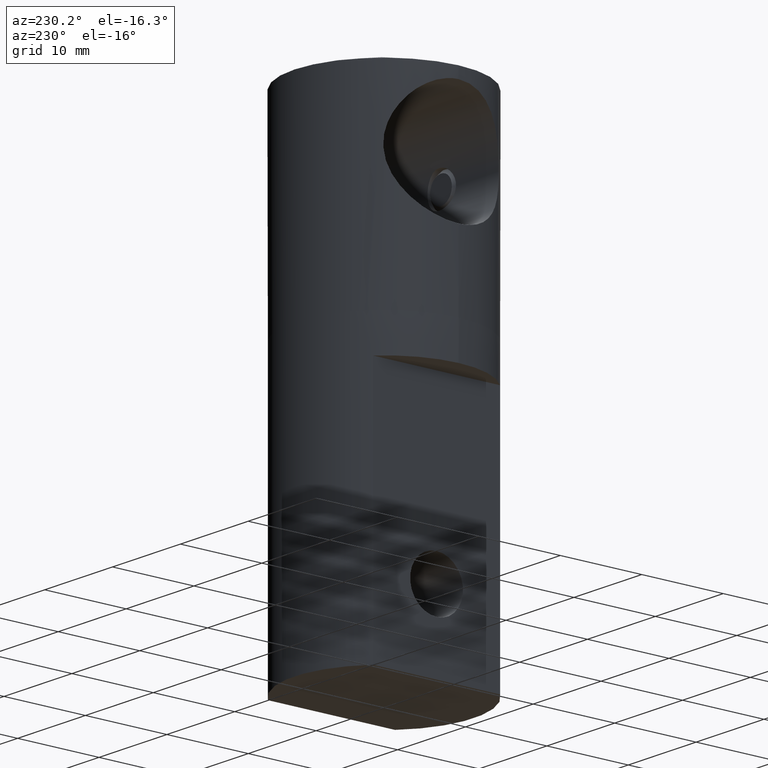
[diagram: clean part render]
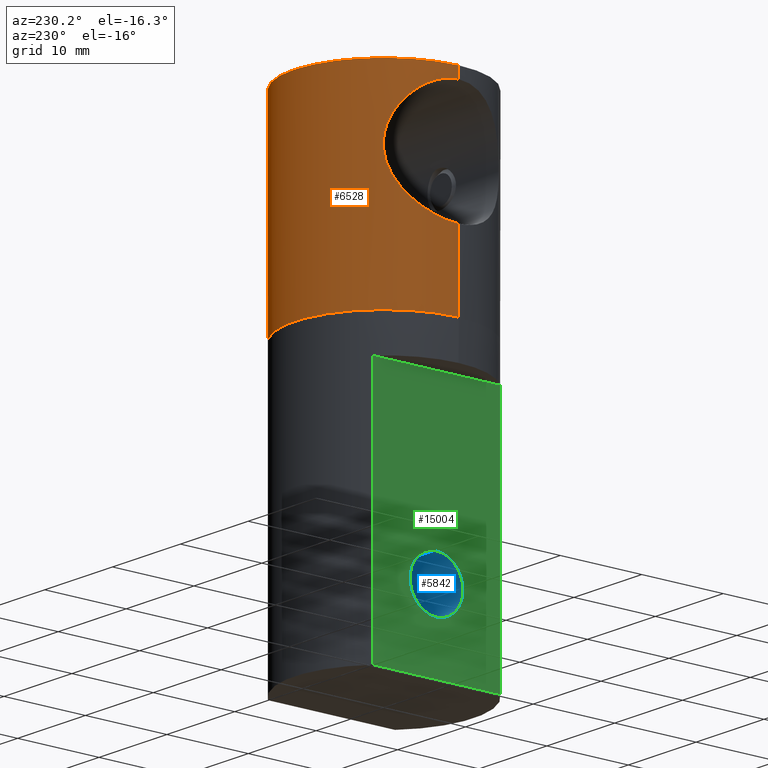
[diagram: same view with three faces highlighted in distinct colors, each labeled with its STEP entity id]
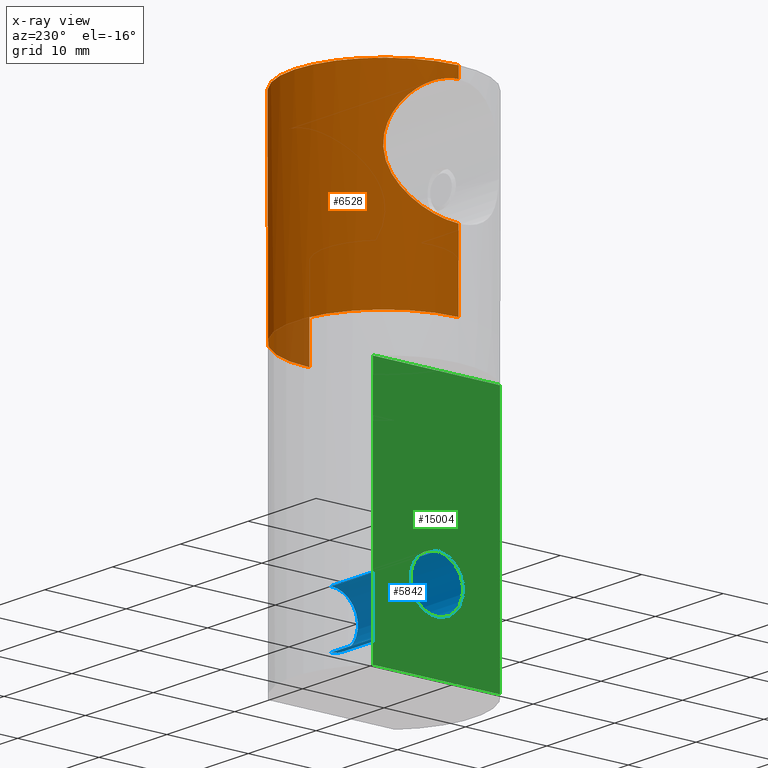
[diagram: x-ray of the same camera — body ghosted, the three highlighted faces saturated]
A machine part, auxiliary view with three faces highlighted in distinct colors.
The next image is the same camera in x-ray (body ghosted, the three faces saturated) — at least one of them is partly hidden behind the body in this view.
Their STEP definitions:

[orange] entity #6528 — the highlighted cylindrical surface (partial cylindrical patch) has radius 11 mm, axis along (0, 0, 1).
#43 = CARTESIAN_POINT ( 'NONE',  ( -9.945067796824554662, 4.714123835347594493, -2.378162400668189846 ) ) ;
#92 = CARTESIAN_POINT ( 'NONE',  ( 11.00000000000000000, 0.000000000000000000, 13.34999999999999964 ) ) ;
#149 = CARTESIAN_POINT ( 'NONE',  ( -10.99223366167804095, 0.4778247633253476234, 10.03798608465075048 ) ) ;
#212 = CARTESIAN_POINT ( 'NONE',  ( -11.00000000000000000, 1.347003868691084210E-15, 10.05000000000000426 ) ) ;
#338 = CARTESIAN_POINT ( 'NONE',  ( -8.776075105529141496, 6.632716161234645469, 5.493682069079120822 ) ) ;
#655 = EDGE_CURVE ( 'NONE', #3757, #11069, #1890, .T. ) ;
#727 = CARTESIAN_POINT ( 'NONE',  ( 0.000000000000000000, 0.000000000000000000, -13.34999999999999964 ) ) ;
#735 = CARTESIAN_POINT ( 'NONE',  ( -9.946061679111865672, 4.712318849131812648, 8.280178432971723623 ) ) ;
#1097 = CARTESIAN_POINT ( 'NONE',  ( 11.00000000000000178, 0.2384219743665853819, 10.05000000000000426 ) ) ;
#1193 = ORIENTED_EDGE ( 'NONE', *, *, #655, .F. ) ;
#1209 = CARTESIAN_POINT ( 'NONE',  ( 10.58705507182292571, 2.993838952874727344, -3.492118531316837249 ) ) ;
#1214 = CARTESIAN_POINT ( 'NONE',  ( 0.000000000000000000, 0.000000000000000000, 11.40899998344315946 ) ) ;
#1252 = CARTESIAN_POINT ( 'NONE',  ( 8.559413198503012410, 6.909426311553657385, 1.299004205872507089 ) ) ;
#1299 = CARTESIAN_POINT ( 'NONE',  ( -10.75628781949875012, 2.344834943863306265, -3.767760858830070170 ) ) ;
#1303 = CARTESIAN_POINT ( 'NONE',  ( 8.776862255579368721, 6.631681787917126591, 0.4035639609908138192 ) ) ;
#1315 = VERTEX_POINT ( 'NONE', #13797 ) ;
#1349 = CARTESIAN_POINT ( 'NONE',  ( -9.618624477816201335, 5.348775577006771087, -1.740722538128044672 ) ) ;
#1404 = DIRECTION ( 'NONE',  ( -0.000000000000000000, -0.000000000000000000, 1.000000000000000000 ) ) ;
#1527 = CARTESIAN_POINT ( 'NONE',  ( -9.130374757092061699, 6.142080975597357551, -0.6400208882153017864 ) ) ;
#1671 = ORIENTED_EDGE ( 'NONE', *, *, #12029, .T. ) ;
#1890 = CIRCLE ( 'NONE', #11426, 11.00000000000000000 ) ;
#2046 = AXIS2_PLACEMENT_3D ( 'NONE', #12220, #14977, #10824 ) ;
#2263 = ORIENTED_EDGE ( 'NONE', *, *, #15520, .T. ) ;
#2347 = CARTESIAN_POINT ( 'NONE',  ( 8.711368628945653114, 6.720228891490071632, 5.286637503048607023 ) ) ;
#2396 = CARTESIAN_POINT ( 'NONE',  ( 10.58881885139752121, 2.987707908590936157, 9.395019652354941186 ) ) ;
#2458 = CARTESIAN_POINT ( 'NONE',  ( 8.599873967107040329, 6.859846145153972508, 4.842380582329886884 ) ) ;
#2514 = CARTESIAN_POINT ( 'NONE',  ( 10.83751477853181377, 1.897570381912789594, -3.895782058172636120 ) ) ;
#2567 = CARTESIAN_POINT ( 'NONE',  ( 9.615757203055357749, 5.354006948956338441, 7.634920387581043855 ) ) ;
#2628 = CARTESIAN_POINT ( 'NONE',  ( 9.942885241981041844, 4.718734203448654796, -2.374118211977240378 ) ) ;
#2822 = CIRCLE ( 'NONE', #6489, 11.00000000000000000 ) ;
#2961 = CARTESIAN_POINT ( 'NONE',  ( -8.453846490142611358, 7.038004268874612279, 1.983706186007275107 ) ) ;
#3160 = LINE ( 'NONE', #8526, #14180 ) ;
#3173 = CIRCLE ( 'NONE', #6649, 10.99999999999999822 ) ;
#3258 = CARTESIAN_POINT ( 'NONE',  ( 0.000000000000000000, 0.000000000000000000, 11.40899998344315946 ) ) ;
#3400 = CARTESIAN_POINT ( 'NONE',  ( -10.39380994311524553, 3.607487159642616792, 9.069572795649069263 ) ) ;
#3461 = EDGE_CURVE ( 'NONE', #4395, #17034, #3160, .T. ) ;
#3467 = VERTEX_POINT ( 'NONE', #15623 ) ;
#3707 = CARTESIAN_POINT ( 'NONE',  ( 11.00000000000000000, 2.600742020527134374E-16, -4.149999999999996803 ) ) ;
#3757 = VERTEX_POINT ( 'NONE', #11725 ) ;
#3765 = CARTESIAN_POINT ( 'NONE',  ( 9.449850365635468208, 5.638205119789543751, 7.288701875633470273 ) ) ;
#3812 = VECTOR ( 'NONE', #7942, 1000.000000000000000 ) ;
#3881 = CARTESIAN_POINT ( 'NONE',  ( 9.446963994808660559, 5.643001742495250994, -1.382406733066165128 ) ) ;
#3933 = CARTESIAN_POINT ( 'NONE',  ( 10.39345552336475542, 3.608564471352442737, -3.168976685365959334 ) ) ;
#4042 = CARTESIAN_POINT ( 'NONE',  ( -8.484095018334604887, 7.001707441309244828, 1.749244857311118562 ) ) ;
#4361 = CYLINDRICAL_SURFACE ( 'NONE', #2046, 11.00000000000000000 ) ;
#4395 = VERTEX_POINT ( 'NONE', #16262 ) ;
#4948 = CARTESIAN_POINT ( 'NONE',  ( -11.00000000000000000, 1.347111479062088405E-15, 11.40899998344315946 ) ) ;
#5085 = CARTESIAN_POINT ( 'NONE',  ( -10.96816309321517835, 0.9583971403540449963, -4.100953714885069878 ) ) ;
#5125 = CARTESIAN_POINT ( 'NONE',  ( -10.84562008106580322, 1.895757854931589659, 9.808784826296198744 ) ) ;
#5174 = FACE_OUTER_BOUND ( 'NONE', #6568, .T. ) ;
#5206 = CARTESIAN_POINT ( 'NONE',  ( 11.00000000000000355, 0.4837421286456314862, -4.149999999999998579 ) ) ;
#5258 = CARTESIAN_POINT ( 'NONE',  ( 10.10150593543633057, 4.358483782773000748, 8.559384914093561392 ) ) ;
#5310 = CARTESIAN_POINT ( 'NONE',  ( -10.84708644371761288, 1.886754462171442714, -3.911095464105312391 ) ) ;
#5409 = CARTESIAN_POINT ( 'NONE',  ( -11.00000000000000000, 0.2387790642552299336, 10.05000000000000426 ) ) ;
#5422 = CARTESIAN_POINT ( 'NONE',  ( -8.979283315825179912, 6.357838222277258922, -0.2435410804395544970 ) ) ;
#5426 = ORIENTED_EDGE ( 'NONE', *, *, #3461, .F. ) ;
#5484 = CARTESIAN_POINT ( 'NONE',  ( -9.449696016915828167, 5.638452545124778226, -1.388347794378992139 ) ) ;
#5543 = CARTESIAN_POINT ( 'NONE',  ( -8.600628163531990111, 6.858884507550863319, 1.055644347648836190 ) ) ;
#5704 = LINE ( 'NONE', #92, #10493 ) ;
#6128 = CARTESIAN_POINT ( 'NONE',  ( -10.75656913952135696, 2.344196681124516513, 9.668238734068120621 ) ) ;
#6141 = LINE ( 'NONE', #12125, #15513 ) ;
#6149 = ORIENTED_EDGE ( 'NONE', *, *, #13061, .T. ) ;
#6168 = B_SPLINE_CURVE_WITH_KNOTS ( 'NONE', 3,
 ( #14339, #1097, #11711, #9047, #13242, #7670, #15862, #2396, #6391, #15748, #17073, #11654, #5258, #14457, #10450, #2567, #3765, #10400, #13068, #2347, #2458, #15805, #6613, #9214, #6500, #1252, #13183, #11827, #1303, #14398, #10561, #3881, #14571, #2628, #11889, #9099, #3933, #10503, #1209, #7841, #16969, #2514, #8988, #10341, #5206, #3707 ),
 .UNSPECIFIED., .F., .F.,
 ( 4, 2, 2, 2, 2, 2, 2, 2, 2, 2, 2, 2, 2, 2, 2, 2, 2, 2, 2, 2, 2, 2, 4 ),
 ( 0.02288581673804612054, 0.02359992896935396781, 0.02431404120066181507, 0.02574226566327750612, 0.02645637789458535338, 0.02717049012589320064, 0.02788460235720104791, 0.02859871458850889517, 0.03002693905112459316, 0.03145516351374029462, 0.03288338797635599609, 0.03431161243897169755, 0.03573983690158739901, 0.03645394913289524974, 0.03716806136420310047, 0.03859628582681880193, 0.04002451028943450340, 0.04145273475205020486, 0.04216684698335804865, 0.04288095921466589938, 0.04359507144597375011, 0.04430918367728160084, 0.04573740813989730231 ),
 .UNSPECIFIED. ) ;
#6391 = CARTESIAN_POINT ( 'NONE',  ( 10.52670800807837637, 3.199048539657768586, 9.292672148448730240 ) ) ;
#6444 = DIRECTION ( 'NONE',  ( 1.000000000000000000, 0.000000000000000000, 0.000000000000000000 ) ) ;
#6489 = AXIS2_PLACEMENT_3D ( 'NONE', #1214, #12958, #6444 ) ;
#6500 = CARTESIAN_POINT ( 'NONE',  ( 8.443597084180385792, 7.051281678532665964, 1.994352074215531401 ) ) ;
#6528 = ADVANCED_FACE ( 'NONE', ( #5174 ), #4361, .T. ) ;
#6548 = VERTEX_POINT ( 'NONE', #16310 ) ;
#6568 = EDGE_LOOP ( 'NONE', ( #14297, #1671, #11375, #2263, #12072, #1193, #12048, #6149, #5426 ) ) ;
#6613 = CARTESIAN_POINT ( 'NONE',  ( 8.402180831779730852, 7.099532212742898807, 3.433268971324419994 ) ) ;
#6649 = AXIS2_PLACEMENT_3D ( 'NONE', #727, #7233, #9961 ) ;
#6669 = CARTESIAN_POINT ( 'NONE',  ( -10.40030921667203678, 3.605612129418025003, -3.183616164452566011 ) ) ;
#6776 = VERTEX_POINT ( 'NONE', #4948 ) ;
#7233 = DIRECTION ( 'NONE',  ( -0.000000000000000000, -0.000000000000000000, 1.000000000000000000 ) ) ;
#7259 = EDGE_CURVE ( 'NONE', #3467, #15239, #15090, .T. ) ;
#7422 = CARTESIAN_POINT ( 'NONE',  ( -10.52550988113103436, 3.202950277915759258, 9.290681692486536747 ) ) ;
#7670 = CARTESIAN_POINT ( 'NONE',  ( 10.84607314739752049, 1.893529277578472003, 9.809501551777522366 ) ) ;
#7841 = CARTESIAN_POINT ( 'NONE',  ( 10.69872493215229170, 2.566338168617761539, -3.674037383015094527 ) ) ;
#7942 = DIRECTION ( 'NONE',  ( -0.000000000000000000, -0.000000000000000000, 1.000000000000000000 ) ) ;
#8052 = CARTESIAN_POINT ( 'NONE',  ( -11.00000000000000000, 1.347111479062088405E-15, 13.34999999999999964 ) ) ;
#8177 = DIRECTION ( 'NONE',  ( -0.000000000000000000, -0.000000000000000000, 1.000000000000000000 ) ) ;
#8290 = CARTESIAN_POINT ( 'NONE',  ( -8.412743936715996185, 7.087084310408757304, 2.459628915191882204 ) ) ;
#8371 = DIRECTION ( 'NONE',  ( -0.000000000000000000, -0.000000000000000000, 1.000000000000000000 ) ) ;
#8526 = CARTESIAN_POINT ( 'NONE',  ( 11.00000000000000000, 0.000000000000000000, 13.34999999999999964 ) ) ;
#8685 = CARTESIAN_POINT ( 'NONE',  ( -10.10487056211743528, 4.365059397495767435, 8.568012804768532220 ) ) ;
#8960 = CARTESIAN_POINT ( 'NONE',  ( -10.93731957707322699, 1.195986482285178898, 9.952594027835869994 ) ) ;
#8988 = CARTESIAN_POINT ( 'NONE',  ( 10.87572446182579533, 1.665720667349795736, -3.955994947702205611 ) ) ;
#9047 = CARTESIAN_POINT ( 'NONE',  ( 10.96128869548732254, 0.9523554537449743229, 9.989899788292282423 ) ) ;
#9099 = CARTESIAN_POINT ( 'NONE',  ( 10.32239293031569893, 3.806475483660659798, -3.047740651979198745 ) ) ;
#9214 = CARTESIAN_POINT ( 'NONE',  ( 8.401395920298458719, 7.100461038558920635, 2.480575268732210237 ) ) ;
#9864 = CARTESIAN_POINT ( 'NONE',  ( -9.129417169663545550, 6.143529132884216537, 6.537657775010733197 ) ) ;
#9961 = DIRECTION ( 'NONE',  ( 1.000000000000000000, 0.000000000000000000, 0.000000000000000000 ) ) ;
#10027 = CARTESIAN_POINT ( 'NONE',  ( -10.32395503813734905, 3.802169186888171293, 8.950413513153113954 ) ) ;
#10273 = DIRECTION ( 'NONE',  ( -0.000000000000000000, -0.000000000000000000, 1.000000000000000000 ) ) ;
#10341 = CARTESIAN_POINT ( 'NONE',  ( 10.96809102140170111, 0.9617749170238371059, -4.100854930168572388 ) ) ;
#10395 = CARTESIAN_POINT ( 'NONE',  ( -10.10423413395051107, 4.367072611774283075, -2.666970970561548970 ) ) ;
#10400 = CARTESIAN_POINT ( 'NONE',  ( 9.130304730956144255, 6.142195407637386140, 6.539864414270356363 ) ) ;
#10450 = CARTESIAN_POINT ( 'NONE',  ( 9.861603752338668372, 4.876557769703527612, 8.115283310778369952 ) ) ;
#10493 = VECTOR ( 'NONE', #1404, 1000.000000000000000 ) ;
#10503 = CARTESIAN_POINT ( 'NONE',  ( 10.52575241710548859, 3.202216625068708300, -3.391089961993354329 ) ) ;
#10561 = CARTESIAN_POINT ( 'NONE',  ( 9.127971041129400831, 6.145627881455133057, -0.6339189038262011966 ) ) ;
#10733 = CARTESIAN_POINT ( 'NONE',  ( -8.714485533492817737, 6.716202618522651768, 0.6019297540205120756 ) ) ;
#10798 = CARTESIAN_POINT ( 'NONE',  ( -11.00000000000000000, 1.347003868691084210E-15, 10.05000000000000426 ) ) ;
#10824 = DIRECTION ( 'NONE',  ( 1.000000000000000000, 0.000000000000000000, 0.000000000000000000 ) ) ;
#11069 = VERTEX_POINT ( 'NONE', #14785 ) ;
#11375 = ORIENTED_EDGE ( 'NONE', *, *, #7259, .T. ) ;
#11426 = AXIS2_PLACEMENT_3D ( 'NONE', #3258, #8371, #13775 ) ;
#11565 = CARTESIAN_POINT ( 'NONE',  ( 11.00000000000000000, 2.600742020527134374E-16, -4.149999999999996803 ) ) ;
#11654 = CARTESIAN_POINT ( 'NONE',  ( 10.17809414954137814, 4.176994779955133019, 8.695833168338905850 ) ) ;
#11691 = EDGE_CURVE ( 'NONE', #11069, #6776, #2822, .T. ) ;
#11711 = CARTESIAN_POINT ( 'NONE',  ( 10.99225655162032922, 0.4765780937641450055, 10.03802111029726341 ) ) ;
#11725 = CARTESIAN_POINT ( 'NONE',  ( 11.00000000000000000, 0.000000000000000000, 11.40899998344315946 ) ) ;
#11827 = CARTESIAN_POINT ( 'NONE',  ( 8.715020357875063794, 6.712389045540278154, 0.6243565931685388648 ) ) ;
#11885 = CARTESIAN_POINT ( 'NONE',  ( -10.53307072462165728, 3.201624537633624978, -3.404223964451839279 ) ) ;
#11889 = CARTESIAN_POINT ( 'NONE',  ( 10.10162466040127960, 4.372800576579909837, -2.662237455945417608 ) ) ;
#12029 = EDGE_CURVE ( 'NONE', #1315, #3467, #6141, .T. ) ;
#12048 = ORIENTED_EDGE ( 'NONE', *, *, #12679, .F. ) ;
#12072 = ORIENTED_EDGE ( 'NONE', *, *, #11691, .F. ) ;
#12125 = CARTESIAN_POINT ( 'NONE',  ( -11.00000000000000000, 1.347111479062088405E-15, 13.34999999999999964 ) ) ;
#12220 = CARTESIAN_POINT ( 'NONE',  ( 0.000000000000000000, 0.000000000000000000, 13.34999999999999964 ) ) ;
#12235 = CARTESIAN_POINT ( 'NONE',  ( -8.442630690861324894, 7.052444570720942885, 3.898411085082026606 ) ) ;
#12480 = CARTESIAN_POINT ( 'NONE',  ( -8.974931398539803595, 6.363982882210717840, 6.131617584053833170 ) ) ;
#12561 = LINE ( 'NONE', #8052, #3812 ) ;
#12679 = EDGE_CURVE ( 'NONE', #6548, #3757, #5704, .T. ) ;
#12765 = CARTESIAN_POINT ( 'NONE',  ( -10.58769266743697912, 2.991742537915969002, 9.393172667929700737 ) ) ;
#12958 = DIRECTION ( 'NONE',  ( -0.000000000000000000, -0.000000000000000000, 1.000000000000000000 ) ) ;
#13061 = EDGE_CURVE ( 'NONE', #6548, #17034, #6168, .T. ) ;
#13068 = CARTESIAN_POINT ( 'NONE',  ( 8.975770888038764994, 6.362779008328995012, 6.133770479453402480 ) ) ;
#13183 = CARTESIAN_POINT ( 'NONE',  ( 8.606495603050264620, 6.850983868871864502, 1.071488891998424453 ) ) ;
#13242 = CARTESIAN_POINT ( 'NONE',  ( 10.93782023536322079, 1.191544149335223679, 9.953376057742175931 ) ) ;
#13349 = CARTESIAN_POINT ( 'NONE',  ( -8.401972138864584494, 7.099779169744996565, 2.702918693701362507 ) ) ;
#13465 = CARTESIAN_POINT ( 'NONE',  ( -8.401419675687222366, 7.100432927546194151, 3.424874684192138030 ) ) ;
#13775 = DIRECTION ( 'NONE',  ( 1.000000000000000000, 0.000000000000000000, 0.000000000000000000 ) ) ;
#13797 = CARTESIAN_POINT ( 'NONE',  ( -10.99999999999999822, 1.347111479062088207E-15, -13.34999999999999964 ) ) ;
#14180 = VECTOR ( 'NONE', #10273, 1000.000000000000000 ) ;
#14297 = ORIENTED_EDGE ( 'NONE', *, *, #16929, .T. ) ;
#14339 = CARTESIAN_POINT ( 'NONE',  ( 11.00000000000000000, 1.076104219691452343E-19, 10.05000000000000426 ) ) ;
#14398 = CARTESIAN_POINT ( 'NONE',  ( 8.976446890868427175, 6.361875413259864942, -0.2360164114432382054 ) ) ;
#14457 = CARTESIAN_POINT ( 'NONE',  ( 9.943384263157289737, 4.708068865633418199, 8.269367213833703545 ) ) ;
#14571 = CARTESIAN_POINT ( 'NONE',  ( 9.616035461838839282, 5.353436411750736035, -1.735446169069210898 ) ) ;
#14741 = CARTESIAN_POINT ( 'NONE',  ( -8.558781598506170596, 6.910210156023721240, 4.597910829485651441 ) ) ;
#14785 = CARTESIAN_POINT ( 'NONE',  ( 0.000000000000000000, 11.00000000000000000, 11.40899998344316124 ) ) ;
#14977 = DIRECTION ( 'NONE',  ( -0.000000000000000000, -0.000000000000000000, 1.000000000000000000 ) ) ;
#14983 = CARTESIAN_POINT ( 'NONE',  ( -10.96096262931236787, 0.9564599396693918010, 9.989392560758147965 ) ) ;
#14997 = CARTESIAN_POINT ( 'NONE',  ( -9.616002296458887599, 5.353745576237064263, 7.635526583866741213 ) ) ;
#15090 = B_SPLINE_CURVE_WITH_KNOTS ( 'NONE', 3,
 ( #15268, #16589, #5085, #5310, #1299, #11885, #6669, #10395, #43, #1349, #5484, #1527, #5422, #10733, #5543, #4042, #2961, #8290, #13349, #13465, #12235, #14741, #16082, #16206, #338, #12480, #9864, #16546, #14997, #735, #8685, #10027, #3400, #7422, #12765, #6128, #5125, #8960, #14983, #149, #5409, #212 ),
 .UNSPECIFIED., .F., .F.,
 ( 4, 2, 2, 2, 2, 2, 2, 2, 2, 2, 2, 2, 2, 2, 2, 2, 2, 2, 2, 2, 4 ),
 ( 2.518951915932314154E-19, 0.001430363546127882100, 0.002860727092255764201, 0.004291090638383645434, 0.005721454184511529269, 0.007151817730639410502, 0.008582181276767292602, 0.01001254482289517383, 0.01072772659595911705, 0.01144290836902305854, 0.01287327191515094324, 0.01358845368821488472, 0.01430363546127882274, 0.01573399900740670571, 0.01716436255353458867, 0.01859472609966246817, 0.01930990787272640966, 0.02002508964579034767, 0.02145545319191823411, 0.02217063496498217559, 0.02288581673804612054 ),
 .UNSPECIFIED. ) ;
#15239 = VERTEX_POINT ( 'NONE', #10798 ) ;
#15268 = CARTESIAN_POINT ( 'NONE',  ( -11.00000000000000000, -2.600742020527134374E-16, -4.149999999999996803 ) ) ;
#15513 = VECTOR ( 'NONE', #8177, 1000.000000000000000 ) ;
#15520 = EDGE_CURVE ( 'NONE', #15239, #6776, #12561, .T. ) ;
#15623 = CARTESIAN_POINT ( 'NONE',  ( -11.00000000000000000, -2.600742020527134374E-16, -4.149999999999996803 ) ) ;
#15748 = CARTESIAN_POINT ( 'NONE',  ( 10.39478236017299828, 3.604718120888807942, 9.071226087209128153 ) ) ;
#15805 = CARTESIAN_POINT ( 'NONE',  ( 8.443332468633530041, 7.051628053820479636, 3.905581076693656950 ) ) ;
#15862 = CARTESIAN_POINT ( 'NONE',  ( 10.75701646858611937, 2.341907247019044735, 9.668941725565932899 ) ) ;
#16082 = CARTESIAN_POINT ( 'NONE',  ( -8.606538236366738204, 6.850930423834669547, 4.828706370018758243 ) ) ;
#16206 = CARTESIAN_POINT ( 'NONE',  ( -8.715072871429502044, 6.712320979507743424, 5.275840141762283331 ) ) ;
#16262 = CARTESIAN_POINT ( 'NONE',  ( 10.99999999999999822, 0.000000000000000000, -13.34999999999999964 ) ) ;
#16310 = CARTESIAN_POINT ( 'NONE',  ( 11.00000000000000000, 1.076104219691452343E-19, 10.05000000000000426 ) ) ;
#16546 = CARTESIAN_POINT ( 'NONE',  ( -9.449343857318062589, 5.639069846216668402, 7.287641039399408882 ) ) ;
#16589 = CARTESIAN_POINT ( 'NONE',  ( -10.99999999999999645, 0.4844666399802446399, -4.149999999999996803 ) ) ;
#16929 = EDGE_CURVE ( 'NONE', #4395, #1315, #3173, .T. ) ;
#16969 = CARTESIAN_POINT ( 'NONE',  ( 10.74909639000340000, 2.347216804563205361, -3.754929426525466685 ) ) ;
#17034 = VERTEX_POINT ( 'NONE', #11565 ) ;
#17073 = CARTESIAN_POINT ( 'NONE',  ( 10.32472976803014930, 3.800110672842702986, 8.951753332510669736 ) ) ;

[blue] entity #5842 — the highlighted cylindrical surface (edge-blend (fillet) strip) has radius 3.25 mm, axis along (1, 0, 0).
#151 = AXIS2_PLACEMENT_3D ( 'NONE', #9793, #559, #12523 ) ;
#559 = DIRECTION ( 'NONE',  ( -1.000000000000000000, 2.222224540564077178E-16, 0.000000000000000000 ) ) ;
#689 = ORIENTED_EDGE ( 'NONE', *, *, #1286, .F. ) ;
#1286 = EDGE_CURVE ( 'NONE', #16151, #12568, #5031, .T. ) ;
#1381 = DIRECTION ( 'NONE',  ( 0.000000000000000000, 0.000000000000000000, -1.000000000000000000 ) ) ;
#2159 = CIRCLE ( 'NONE', #3219, 3.249999999999999556 ) ;
#2836 = VERTEX_POINT ( 'NONE', #15825 ) ;
#3219 = AXIS2_PLACEMENT_3D ( 'NONE', #11969, #3952, #1381 ) ;
#3952 = DIRECTION ( 'NONE',  ( 1.000000000000000000, 0.000000000000000000, -0.000000000000000000 ) ) ;
#4253 = CARTESIAN_POINT ( 'NONE',  ( -11.00000000000000000, 3.980102097228898231E-16, -22.25000000000000000 ) ) ;
#4721 = CARTESIAN_POINT ( 'NONE',  ( 7.750000000000003553, -1.927472539704139895E-31, -28.74999999999999645 ) ) ;
#4787 = ORIENTED_EDGE ( 'NONE', *, *, #7328, .F. ) ;
#5031 = CIRCLE ( 'NONE', #151, 3.250000000000000444 ) ;
#5124 = CARTESIAN_POINT ( 'NONE',  ( -7.750000000000000888, 0.000000000000000000, -28.74999999999999645 ) ) ;
#5539 = LINE ( 'NONE', #4253, #11981 ) ;
#5842 = ADVANCED_FACE ( 'NONE', ( #15417 ), #14144, .F. ) ;
#5961 = DIRECTION ( 'NONE',  ( 0.000000000000000000, 0.000000000000000000, -1.000000000000000000 ) ) ;
#7171 = DIRECTION ( 'NONE',  ( 1.000000000000000000, -0.000000000000000000, -0.000000000000000000 ) ) ;
#7292 = CARTESIAN_POINT ( 'NONE',  ( -11.00000000000000000, 0.000000000000000000, -25.50000000000000000 ) ) ;
#7328 = EDGE_CURVE ( 'NONE', #9318, #16151, #15788, .T. ) ;
#7833 = EDGE_LOOP ( 'NONE', ( #14224, #14481, #689, #4787 ) ) ;
#8801 = AXIS2_PLACEMENT_3D ( 'NONE', #7292, #13913, #5961 ) ;
#9082 = DIRECTION ( 'NONE',  ( 1.000000000000000000, -0.000000000000000000, -0.000000000000000000 ) ) ;
#9266 = CARTESIAN_POINT ( 'NONE',  ( 7.750000000000003553, 3.980102097228897245E-16, -22.25000000000000000 ) ) ;
#9318 = VERTEX_POINT ( 'NONE', #5124 ) ;
#9717 = EDGE_CURVE ( 'NONE', #2836, #12568, #5539, .T. ) ;
#9793 = CARTESIAN_POINT ( 'NONE',  ( 7.750000000000003553, 0.000000000000000000, -25.50000000000000000 ) ) ;
#11206 = VECTOR ( 'NONE', #9082, 1000.000000000000000 ) ;
#11868 = EDGE_CURVE ( 'NONE', #2836, #9318, #2159, .T. ) ;
#11969 = CARTESIAN_POINT ( 'NONE',  ( -7.750000000000000888, 0.000000000000000000, -25.50000000000000000 ) ) ;
#11981 = VECTOR ( 'NONE', #7171, 1000.000000000000000 ) ;
#12523 = DIRECTION ( 'NONE',  ( -2.668805347656625692E-16, -1.000000000000000000, 0.000000000000000000 ) ) ;
#12568 = VERTEX_POINT ( 'NONE', #9266 ) ;
#13913 = DIRECTION ( 'NONE',  ( 1.000000000000000000, -0.000000000000000000, -0.000000000000000000 ) ) ;
#14144 = CYLINDRICAL_SURFACE ( 'NONE', #8801, 3.249999999999999556 ) ;
#14224 = ORIENTED_EDGE ( 'NONE', *, *, #11868, .F. ) ;
#14481 = ORIENTED_EDGE ( 'NONE', *, *, #9717, .T. ) ;
#15417 = FACE_OUTER_BOUND ( 'NONE', #7833, .T. ) ;
#15788 = LINE ( 'NONE', #16945, #11206 ) ;
#15825 = CARTESIAN_POINT ( 'NONE',  ( -7.750000000000000888, 3.980102097228899218E-16, -22.25000000000000000 ) ) ;
#16151 = VERTEX_POINT ( 'NONE', #4721 ) ;
#16945 = CARTESIAN_POINT ( 'NONE',  ( -11.00000000000000000, 0.000000000000000000, -28.74999999999999645 ) ) ;

[green] entity #15004 — the highlighted planar face has unit normal (1, 0, 0).
#141 = CARTESIAN_POINT ( 'NONE',  ( -7.750000000000000888, 7.806247497997995666, -4.500000000000000888 ) ) ;
#951 = VECTOR ( 'NONE', #3547, 1000.000000000000000 ) ;
#1381 = DIRECTION ( 'NONE',  ( 0.000000000000000000, 0.000000000000000000, -1.000000000000000000 ) ) ;
#1647 = DIRECTION ( 'NONE',  ( -0.000000000000000000, -0.000000000000000000, -1.000000000000000000 ) ) ;
#2023 = CARTESIAN_POINT ( 'NONE',  ( -7.750000000000000888, 7.806247497997995666, -4.500000000000000888 ) ) ;
#2159 = CIRCLE ( 'NONE', #3219, 3.249999999999999556 ) ;
#2352 = PLANE ( 'NONE',  #4039 ) ;
#2836 = VERTEX_POINT ( 'NONE', #15825 ) ;
#2884 = DIRECTION ( 'NONE',  ( -0.000000000000000000, -0.000000000000000000, -1.000000000000000000 ) ) ;
#3102 = EDGE_LOOP ( 'NONE', ( #15156, #5446, #15314, #12688 ) ) ;
#3118 = EDGE_CURVE ( 'NONE', #9318, #2836, #7529, .T. ) ;
#3219 = AXIS2_PLACEMENT_3D ( 'NONE', #11969, #3952, #1381 ) ;
#3547 = DIRECTION ( 'NONE',  ( 0.000000000000000000, -1.000000000000000000, 0.000000000000000000 ) ) ;
#3952 = DIRECTION ( 'NONE',  ( 1.000000000000000000, 0.000000000000000000, -0.000000000000000000 ) ) ;
#4039 = AXIS2_PLACEMENT_3D ( 'NONE', #15538, #15584, #17027 ) ;
#4322 = CARTESIAN_POINT ( 'NONE',  ( -7.750000000000000888, 7.806247497997996554, -34.89999999999999858 ) ) ;
#4458 = VECTOR ( 'NONE', #16701, 1000.000000000000000 ) ;
#4601 = CARTESIAN_POINT ( 'NONE',  ( -7.750000000000000888, -7.806247497997995666, -4.500000000000000888 ) ) ;
#5065 = VERTEX_POINT ( 'NONE', #4601 ) ;
#5124 = CARTESIAN_POINT ( 'NONE',  ( -7.750000000000000888, 0.000000000000000000, -28.74999999999999645 ) ) ;
#5265 = DIRECTION ( 'NONE',  ( 1.000000000000000000, 0.000000000000000000, -0.000000000000000000 ) ) ;
#5433 = CARTESIAN_POINT ( 'NONE',  ( -7.750000000000000888, 0.000000000000000000, -25.50000000000000000 ) ) ;
#5446 = ORIENTED_EDGE ( 'NONE', *, *, #6703, .F. ) ;
#5549 = CARTESIAN_POINT ( 'NONE',  ( -7.750000000000000888, 7.806247497997995666, -4.500000000000000888 ) ) ;
#5896 = AXIS2_PLACEMENT_3D ( 'NONE', #5433, #5265, #15984 ) ;
#6235 = CARTESIAN_POINT ( 'NONE',  ( -7.750000000000000888, -7.806247497997995666, -34.89999999999999858 ) ) ;
#6463 = VERTEX_POINT ( 'NONE', #4322 ) ;
#6703 = EDGE_CURVE ( 'NONE', #5065, #17022, #12691, .T. ) ;
#6762 = LINE ( 'NONE', #5549, #14664 ) ;
#7523 = CARTESIAN_POINT ( 'NONE',  ( -7.750000000000000888, 7.806247497997995666, -34.89999999999999858 ) ) ;
#7529 = CIRCLE ( 'NONE', #5896, 3.249999999999999556 ) ;
#9318 = VERTEX_POINT ( 'NONE', #5124 ) ;
#11132 = VERTEX_POINT ( 'NONE', #141 ) ;
#11515 = LINE ( 'NONE', #2023, #4458 ) ;
#11868 = EDGE_CURVE ( 'NONE', #2836, #9318, #2159, .T. ) ;
#11969 = CARTESIAN_POINT ( 'NONE',  ( -7.750000000000000888, 0.000000000000000000, -25.50000000000000000 ) ) ;
#12161 = EDGE_CURVE ( 'NONE', #11132, #6463, #6762, .T. ) ;
#12688 = ORIENTED_EDGE ( 'NONE', *, *, #12161, .T. ) ;
#12691 = LINE ( 'NONE', #14439, #15399 ) ;
#12775 = FACE_BOUND ( 'NONE', #14237, .T. ) ;
#12916 = EDGE_CURVE ( 'NONE', #11132, #5065, #11515, .T. ) ;
#14237 = EDGE_LOOP ( 'NONE', ( #14409, #16351 ) ) ;
#14409 = ORIENTED_EDGE ( 'NONE', *, *, #3118, .T. ) ;
#14439 = CARTESIAN_POINT ( 'NONE',  ( -7.750000000000000888, -7.806247497997995666, -4.500000000000000888 ) ) ;
#14664 = VECTOR ( 'NONE', #1647, 1000.000000000000000 ) ;
#15004 = ADVANCED_FACE ( 'NONE', ( #12775, #16110 ), #2352, .F. ) ;
#15156 = ORIENTED_EDGE ( 'NONE', *, *, #17037, .T. ) ;
#15314 = ORIENTED_EDGE ( 'NONE', *, *, #12916, .F. ) ;
#15399 = VECTOR ( 'NONE', #2884, 1000.000000000000000 ) ;
#15538 = CARTESIAN_POINT ( 'NONE',  ( -7.750000000000000888, 7.806247497997995666, -4.500000000000000888 ) ) ;
#15584 = DIRECTION ( 'NONE',  ( 1.000000000000000000, 0.000000000000000000, -0.000000000000000000 ) ) ;
#15825 = CARTESIAN_POINT ( 'NONE',  ( -7.750000000000000888, 3.980102097228899218E-16, -22.25000000000000000 ) ) ;
#15984 = DIRECTION ( 'NONE',  ( 0.000000000000000000, 0.000000000000000000, -1.000000000000000000 ) ) ;
#16110 = FACE_OUTER_BOUND ( 'NONE', #3102, .T. ) ;
#16291 = LINE ( 'NONE', #7523, #951 ) ;
#16351 = ORIENTED_EDGE ( 'NONE', *, *, #11868, .T. ) ;
#16701 = DIRECTION ( 'NONE',  ( 0.000000000000000000, -1.000000000000000000, 0.000000000000000000 ) ) ;
#17022 = VERTEX_POINT ( 'NONE', #6235 ) ;
#17027 = DIRECTION ( 'NONE',  ( -0.000000000000000000, 0.000000000000000000, -1.000000000000000000 ) ) ;
#17037 = EDGE_CURVE ( 'NONE', #6463, #17022, #16291, .T. ) ;